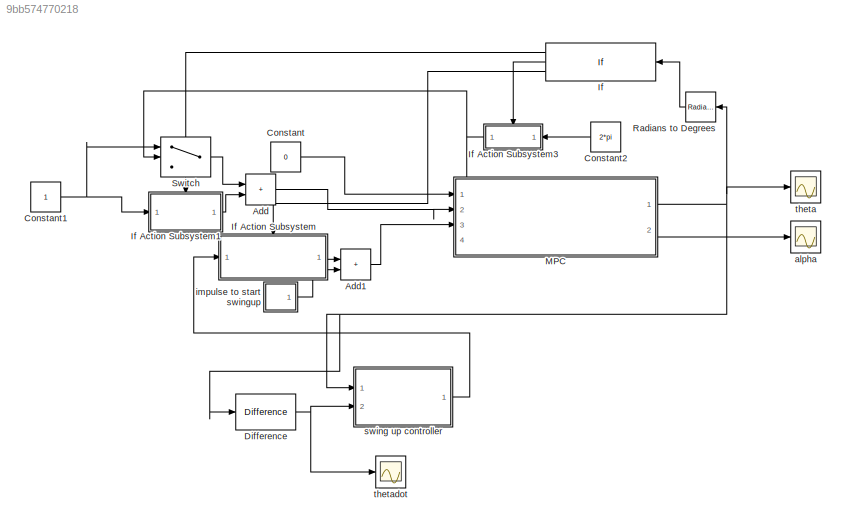
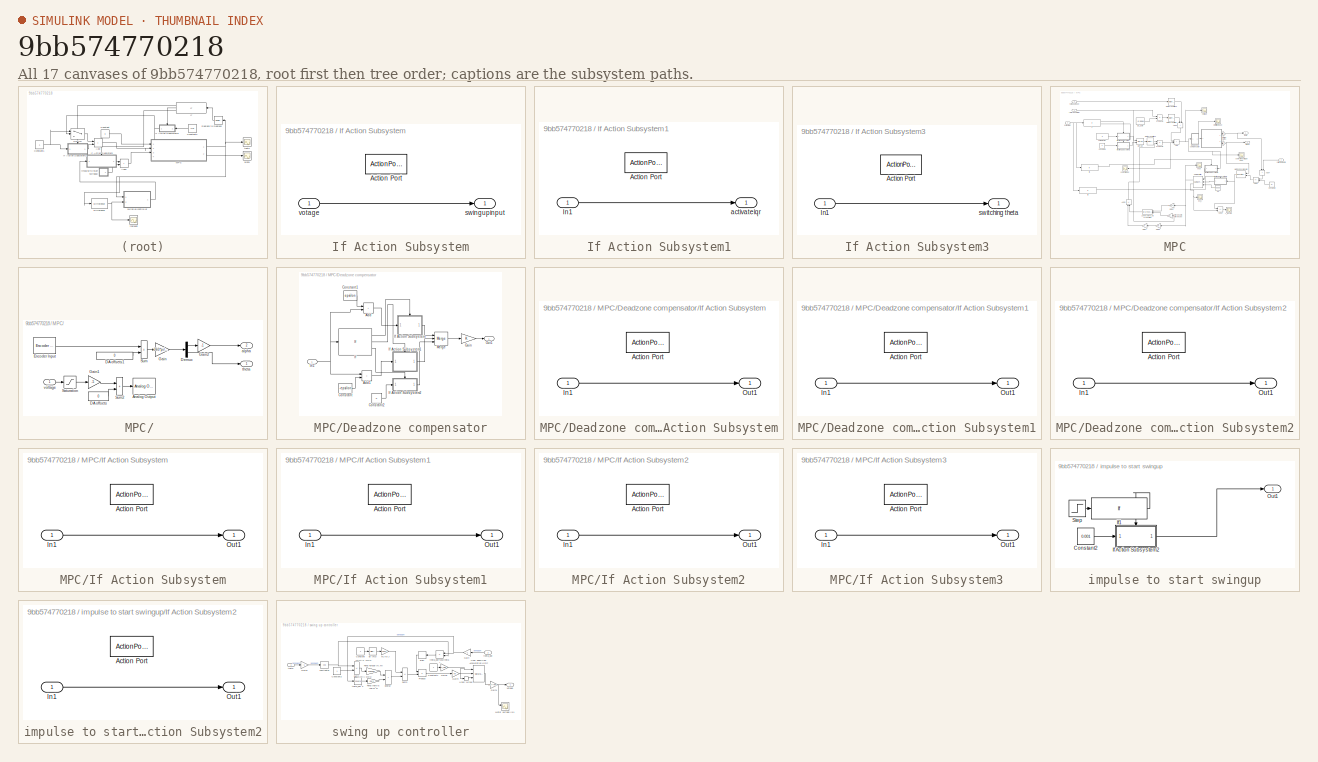
[diagram: thumbnail index - all 17 canvases of the model, root first then tree order]
MODEL slx_9bb574770218
KIND model
CONFIG AbsTol = auto
CONFIG EnableMultiTasking = on
CONFIG FixedStep = auto
CONFIG MaxStep = auto
CONFIG MinStep = auto
CONFIG RelTol = 1e-3
CONFIG SampleTimeConstraint = Unconstrained
CONFIG SolverName = ode1
CONFIG StartTime = 0.0
CONFIG StopTime = 120
BLOCK [Sum] Add
  IconShape = rectangular
  Ports = [2, 1]
BLOCK [Sum] Add1
  IconShape = rectangular
  Ports = [2, 1]
BLOCK [Constant] Constant
  Value = 0
BLOCK [Constant] Constant1
BLOCK [Constant] Constant2
  Value = 2*pi
BLOCK [Reference] Difference  REF=simulink/Discrete/Difference
  Ports = [1, 1]
  SourceBlock = simulink/Discrete/Difference
  SourceProductBaseCode = SL
  SourceType = Difference
BLOCK [If] If
  ElseIfExpressions = u1 <-175 & u1>-185
  IfExpression = u1>175 & u1 < 185
  Ports = [1, 3]
BLOCK [SubSystem] If Action Subsystem
  Ports = [1, 1, 0, 0, 0, 0, 0, 1]
  RequestExecContextInheritance = off
  TreatAsAtomicUnit = on
BLOCK [ActionPort] If Action Subsystem/Action Port
  ActionPortLabel = else
BLOCK [Outport] If Action Subsystem/swingupinput
BLOCK [Inport] If Action Subsystem/votage
BLOCK [SubSystem] If Action Subsystem1
  Ports = [1, 1, 0, 0, 0, 0, 0, 1]
  RequestExecContextInheritance = off
  TreatAsAtomicUnit = on
BLOCK [ActionPort] If Action Subsystem1/Action Port
  ActionPortLabel = if(u1>175 & u1 < 185)
BLOCK [Inport] If Action Subsystem1/In1
BLOCK [Outport] If Action Subsystem1/activatelqr
BLOCK [SubSystem] If Action Subsystem3
  Ports = [1, 1, 0, 0, 0, 0, 0, 1]
  RequestExecContextInheritance = off
  TreatAsAtomicUnit = on
BLOCK [ActionPort] If Action Subsystem3/Action Port
  ActionPortLabel = elseif(u1 <-175 & u1>-185)
BLOCK [Inport] If Action Subsystem3/In1
BLOCK [Outport] If Action Subsystem3/switching theta
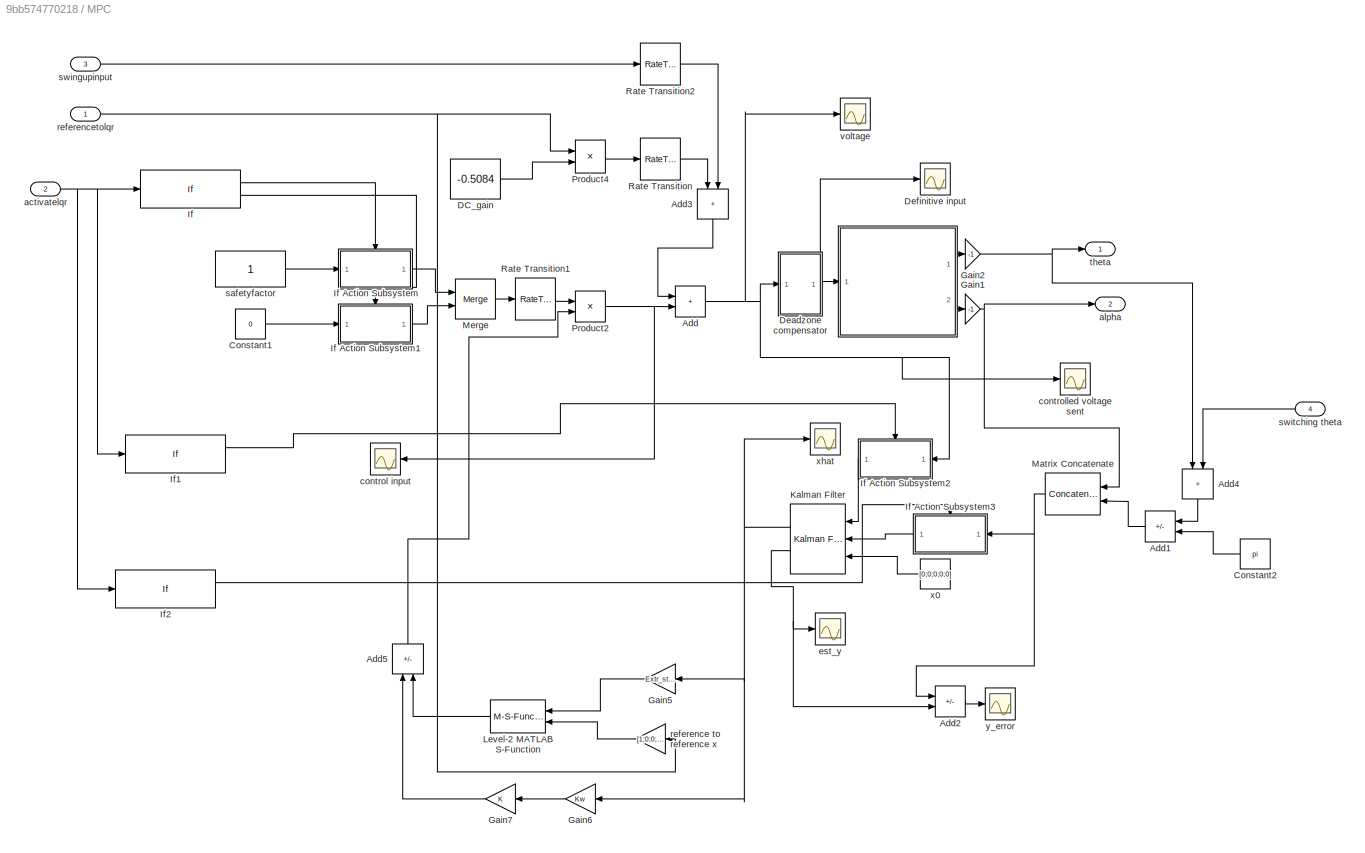
BLOCK [SubSystem] MPC
  PortSchema = {"entries":[{"content":{"sides":[{"content":{"connectorIds":["In1","In2","In3"]},"type":"ConnectorPlacement.EquallySpacedRectSide","uuid":"9db084a4-f3e8-4cdd-afd7-80f171250afb"},{"content":{"connectorIds":["Out1","Out2"],"side":"RIGHT"},"type":"ConnectorPlacement.EquallySpacedRectSide","uuid":"2cad91b5-cf79-4872-a768-f1b673626e3c"},{"content":{"connectorIds":["In4"],"side":"TOP"},"type":"Connector...<+264ch>
  Ports = [4, 2]
  RequestExecContextInheritance = off
BLOCK [SubSystem] MPC/ 
  InitFcn = hwinit
  LoadFcn = hwinit
  NameLocation = top
  Ports = [1, 2]
  RequestExecContextInheritance = off
  ShowPortLabels = none
BLOCK [Reference] MPC/ /Analog Output  REF=sldrtlib/Analog Output
  AttributesFormatString = Humusoft\nMF634 [auto]
  Ports = [1]
  SourceBlock = sldrtlib/Analog Output
  SourceProductBaseCode = WT
  SourceType = Simulink Desktop Real-Time Analog Output
BLOCK [Constant] MPC/ /DA offsets
  Value = 0
BLOCK [Constant] MPC/ /DA offsets1
  SampleTime = h
  Value = 0
BLOCK [Demux] MPC/ /Demux
  Outputs = 2
  Ports = [1, 2]
BLOCK [Reference] MPC/ /Encoder Input  REF=sldrtlib/Encoder Input
  AttributesFormatString = Humusoft\nMF634 [auto]
  Ports = [0, 1]
  SourceBlock = sldrtlib/Encoder Input
  SourceProductBaseCode = WT
  SourceType = Simulink Desktop Real-Time Encoder Input
BLOCK [Gain] MPC/ /Gain
  Gain = 360*pi/(180*512*4)
  OutDataTypeStr = Inherit: Same as input
  ParamDataTypeStr = Inherit: Same as input
  SaturateOnIntegerOverflow = on
BLOCK [Gain] MPC/ /Gain1
  Gain = -5
  OutDataTypeStr = Inherit: Same as input
  ParamDataTypeStr = Inherit: Same as input
  SaturateOnIntegerOverflow = on
BLOCK [Gain] MPC/ /Gain2
  Gain = -1
  OutDataTypeStr = Inherit: Same as input
  ParamDataTypeStr = Inherit: Same as input
  SaturateOnIntegerOverflow = on
BLOCK [Saturate] MPC/ /Saturation
  LowerLimit = -1
  UpperLimit = 1
BLOCK [Sum] MPC/ /Sum
  IconShape = rectangular
  InputSameDT = on
  OutDataTypeStr = Inherit: Same as first input
  Ports = [2, 1]
  SaturateOnIntegerOverflow = on
BLOCK [Sum] MPC/ /Sum2
  IconShape = rectangular
  InputSameDT = on
  OutDataTypeStr = Inherit: Same as first input
  Ports = [2, 1]
  SaturateOnIntegerOverflow = on
BLOCK [Outport] MPC/ /alpha
  Port = 2
  Tag = Cable length
BLOCK [Outport] MPC/ /theta
  Tag = Cable length
BLOCK [Inport] MPC/ /voltage
BLOCK [Sum] MPC/Add
  IconShape = rectangular
  Ports = [2, 1]
  RndMeth = Nearest
BLOCK [Sum] MPC/Add1
  IconShape = rectangular
  Inputs = +-
  Ports = [2, 1]
BLOCK [Sum] MPC/Add2
  IconShape = rectangular
  Inputs = +-
  Ports = [2, 1]
BLOCK [Sum] MPC/Add3
  IconShape = rectangular
  NameLocation = left
  Ports = [2, 1]
BLOCK [Sum] MPC/Add4
  IconShape = rectangular
  NameLocation = left
  Ports = [2, 1]
BLOCK [Sum] MPC/Add5
  IconShape = rectangular
  Inputs = -+
  NameLocation = right
  Ports = [2, 1]
BLOCK [Constant] MPC/Constant1
  Value = 0
BLOCK [Constant] MPC/Constant2
  Value = pi
BLOCK [Constant] MPC/DC_gain
  SampleTime = h
  Value = -0.5084
BLOCK [SubSystem] MPC/Deadzone compensator
  Ports = [1, 1]
  RequestExecContextInheritance = off
BLOCK [Sum] MPC/Deadzone compensator/Add
  IconShape = rectangular
  Ports = [2, 1]
BLOCK [Sum] MPC/Deadzone compensator/Add1
  IconShape = rectangular
  Ports = [2, 1]
BLOCK [Constant] MPC/Deadzone compensator/Constant
  Value = -epsilon
BLOCK [Constant] MPC/Deadzone compensator/Constant1
  Value = epsilon
BLOCK [Constant] MPC/Deadzone compensator/Constant2
  Value = 0
BLOCK [Gain] MPC/Deadzone compensator/Gain
BLOCK [If] MPC/Deadzone compensator/If
  ElseIfExpressions = u1 < 0
  Ports = [1, 3]
BLOCK [SubSystem] MPC/Deadzone compensator/If Action Subsystem
  Ports = [1, 1, 0, 0, 0, 0, 0, 1]
  RequestExecContextInheritance = off
  TreatAsAtomicUnit = on
BLOCK [ActionPort] MPC/Deadzone compensator/If Action Subsystem/Action Port
  ActionPortLabel = if(u1 > 0)
BLOCK [Inport] MPC/Deadzone compensator/If Action Subsystem/In1
BLOCK [Outport] MPC/Deadzone compensator/If Action Subsystem/Out1
BLOCK [SubSystem] MPC/Deadzone compensator/If Action Subsystem1
  Ports = [1, 1, 0, 0, 0, 0, 0, 1]
  RequestExecContextInheritance = off
  TreatAsAtomicUnit = on
BLOCK [ActionPort] MPC/Deadzone compensator/If Action Subsystem1/Action Port
  ActionPortLabel = elseif(u1 < 0)
BLOCK [Inport] MPC/Deadzone compensator/If Action Subsystem1/In1
BLOCK [Outport] MPC/Deadzone compensator/If Action Subsystem1/Out1
BLOCK [SubSystem] MPC/Deadzone compensator/If Action Subsystem2
  Ports = [1, 1, 0, 0, 0, 0, 0, 1]
  RequestExecContextInheritance = off
  TreatAsAtomicUnit = on
BLOCK [ActionPort] MPC/Deadzone compensator/If Action Subsystem2/Action Port
  ActionPortLabel = else
BLOCK [Inport] MPC/Deadzone compensator/If Action Subsystem2/In1
BLOCK [Outport] MPC/Deadzone compensator/If Action Subsystem2/Out1
BLOCK [Inport] MPC/Deadzone compensator/In1
BLOCK [Merge] MPC/Deadzone compensator/Merge
  Inputs = 3
  Ports = [3, 1]
BLOCK [Outport] MPC/Deadzone compensator/Out1
BLOCK [Scope] MPC/Definitive input
  Floating = off
  NumInputPorts = 1
  Ports = [1]
  ScopeSpecificationString = Simulink.scopes.TimeScopeBlockCfg('CurrentConfiguration', extmgr.ConfigurationSet(extmgr.Configuration('Core','General UI',true),extmgr.Configuration('Core','Source UI',true),extmgr.Configuration('Sources','WiredSimulink',true,'DataLoggingVariableName','ScopeData5'),extmgr.Configuration('Visuals','Time Domain',true,'SerializedDisplays',{struct('MinYLimReal','-3.12558','MaxYLimReal','1.33367','YLab...<+1486ch>
BLOCK [Gain] MPC/Gain1
  Gain = -1
BLOCK [Gain] MPC/Gain2
  Gain = -1
BLOCK [Gain] MPC/Gain5
  Gain = Extr_states
  Multiplication = Matrix(K*u)
BLOCK [Gain] MPC/Gain6
  Gain = Kw
  Multiplication = Matrix(K*u)
BLOCK [Gain] MPC/Gain7
BLOCK [If] MPC/If
  Ports = [1, 2]
BLOCK [SubSystem] MPC/If Action Subsystem
  Ports = [1, 1, 0, 0, 0, 0, 0, 1]
  RequestExecContextInheritance = off
  TreatAsAtomicUnit = on
BLOCK [ActionPort] MPC/If Action Subsystem/Action Port
  ActionPortLabel = if(u1 > 0)
BLOCK [Inport] MPC/If Action Subsystem/In1
BLOCK [Outport] MPC/If Action Subsystem/Out1
BLOCK [SubSystem] MPC/If Action Subsystem1
  Ports = [1, 1, 0, 0, 0, 0, 0, 1]
  RequestExecContextInheritance = off
  TreatAsAtomicUnit = on
BLOCK [ActionPort] MPC/If Action Subsystem1/Action Port
  ActionPortLabel = else
BLOCK [Inport] MPC/If Action Subsystem1/In1
BLOCK [Outport] MPC/If Action Subsystem1/Out1
BLOCK [SubSystem] MPC/If Action Subsystem2
  Ports = [1, 1, 0, 0, 0, 0, 0, 1]
  RequestExecContextInheritance = off
  TreatAsAtomicUnit = on
BLOCK [ActionPort] MPC/If Action Subsystem2/Action Port
  ActionPortLabel = if(u1 > 0)
BLOCK [Inport] MPC/If Action Subsystem2/In1
BLOCK [Outport] MPC/If Action Subsystem2/Out1
BLOCK [SubSystem] MPC/If Action Subsystem3
  Ports = [1, 1, 0, 0, 0, 0, 0, 1]
  RequestExecContextInheritance = off
  TreatAsAtomicUnit = on
BLOCK [ActionPort] MPC/If Action Subsystem3/Action Port
  ActionPortLabel = if(u1 > 0)
BLOCK [Inport] MPC/If Action Subsystem3/In1
BLOCK [Outport] MPC/If Action Subsystem3/Out1
BLOCK [If] MPC/If1
  Ports = [1, 2]
BLOCK [If] MPC/If2
  Ports = [1, 2]
BLOCK [Reference] MPC/Kalman Filter  REF=ctrlSharedLib/Kalman Filter
  Ports = [3, 2]
  SourceBlock = ctrlSharedLib/Kalman Filter
  SourceProductBaseCode = CT,ID
  SourceType = ctrlKalmanFilter
BLOCK [M-S-Function] MPC/Level-2 MATLAB S-Function
  FunctionName = S_function_mpc
  Parameters = fast_opt
  Ports = [2, 1]
BLOCK [Concatenate] MPC/Matrix Concatenate
  ConcatenateDimension = 2
  NameLocation = top
  Ports = [2, 1]
BLOCK [Merge] MPC/Merge
  Ports = [2, 1]
BLOCK [Product] MPC/Product2
  Ports = [2, 1]
BLOCK [Product] MPC/Product4
  Inputs = */
  Ports = [2, 1]
BLOCK [RateTransition] MPC/Rate Transition
  OutPortSampleTime = h
BLOCK [RateTransition] MPC/Rate Transition1
  OutPortSampleTime = h
BLOCK [RateTransition] MPC/Rate Transition2
  OutPortSampleTime = h
BLOCK [Inport] MPC/activatelqr
  Port = 2
BLOCK [Outport] MPC/alpha
  Port = 2
BLOCK [Scope] MPC/control input
  Floating = off
  NumInputPorts = 1
  Ports = [1]
  ScopeSpecificationString = Simulink.scopes.TimeScopeBlockCfg('CurrentConfiguration', extmgr.ConfigurationSet(extmgr.Configuration('Core','General UI',true),extmgr.Configuration('Core','Source UI',true),extmgr.Configuration('Sources','WiredSimulink',true,'DataLoggingVariableName','ScopeData2'),extmgr.Configuration('Visuals','Time Domain',true,'SerializedDisplays',{struct('MinYLimReal','-1.15587','MaxYLimReal','0.71963','YLab...<+1465ch>
BLOCK [Scope] MPC/controlled voltage sent
  Floating = off
  NumInputPorts = 1
  Ports = [1]
  ScopeSpecificationString = Simulink.scopes.TimeScopeBlockCfg('CurrentConfiguration', extmgr.ConfigurationSet(extmgr.Configuration('Core','General UI',true),extmgr.Configuration('Core','Source UI',true),extmgr.Configuration('Sources','WiredSimulink',true,'DataLoggingVariableName','ScopeData1'),extmgr.Configuration('Visuals','Time Domain',true,'SerializedDisplays',{struct('MinYLimReal','-0.42993','MaxYLimReal','0.17233','YLab...<+1459ch>
BLOCK [Scope] MPC/est_y
  Floating = off
  NumInputPorts = 1
  Ports = [1]
  ScopeSpecificationString = Simulink.scopes.TimeScopeBlockCfg('CurrentConfiguration', extmgr.ConfigurationSet(extmgr.Configuration('Core','General UI',true),extmgr.Configuration('Core','Source UI',true),extmgr.Configuration('Sources','WiredSimulink',true,'DataLoggingVariableName','ScopeData1'),extmgr.Configuration('Visuals','Time Domain',true,'SerializedDisplays',{struct('MinYLimReal','-2.53759','MaxYLimReal','0.96372','YLab...<+1465ch>
BLOCK [Gain] MPC/reference to reference x
  Gain = [1;0;0;0]
BLOCK [Inport] MPC/referencetolqr
BLOCK [Constant] MPC/safetyfactor
  SampleTime = h
BLOCK [Inport] MPC/swingupinput
  Port = 3
BLOCK [Inport] MPC/switching theta
  Port = 4
BLOCK [Outport] MPC/theta
BLOCK [Scope] MPC/voltage
  Floating = off
  NumInputPorts = 1
  Ports = [1]
  ScopeSpecificationString = Simulink.scopes.TimeScopeBlockCfg('CurrentConfiguration', extmgr.ConfigurationSet(extmgr.Configuration('Core','General UI',true),extmgr.Configuration('Core','Source UI',true),extmgr.Configuration('Sources','WiredSimulink',true,'DataLogging',true,'DataLoggingVariableName','u','SampleTime','h','DataLoggingSaveFormat','Array','DataLoggingDecimation','1','DataLoggingDecimateData',true),extmgr.Configur...<+1700ch>
BLOCK [Constant] MPC/x0
  Value = [0;0;0;0;0]
BLOCK [Scope] MPC/xhat
  Floating = off
  NumInputPorts = 1
  Ports = [1]
  ScopeSpecificationString = Simulink.scopes.TimeScopeBlockCfg('CurrentConfiguration', extmgr.ConfigurationSet(extmgr.Configuration('Core','General UI',true),extmgr.Configuration('Core','Source UI',true),extmgr.Configuration('Sources','WiredSimulink',true,'DataLoggingVariableName','ScopeData1'),extmgr.Configuration('Visuals','Time Domain',true,'SerializedDisplays',{struct('MinYLimReal','-379.91915','MaxYLimReal','87.16712','Y...<+1537ch>
BLOCK [Scope] MPC/y_error
  Floating = off
  NumInputPorts = 1
  Ports = [1]
  ScopeSpecificationString = Simulink.scopes.TimeScopeBlockCfg('CurrentConfiguration', extmgr.ConfigurationSet(extmgr.Configuration('Core','General UI',true),extmgr.Configuration('Core','Source UI',true),extmgr.Configuration('Sources','WiredSimulink',true,'DataLoggingVariableName','ScopeData3'),extmgr.Configuration('Visuals','Time Domain',true,'SerializedDisplays',{struct('MinYLimReal','-0.000053','MaxYLimReal','0.000028','YL...<+1480ch>
BLOCK [Reference] Radians to Degrees  REF=simulink_extras/Transformations/Radians
to Degrees
  Ports = [1, 1]
  SourceBlock = simulink_extras/Transformations/Radians\nto Degrees
  SourceProductBaseCode = SL
  SourceType = RadiansToDegrees
BLOCK [Switch] Switch
  Criteria = u2 > Threshold
  InputSameDT = off
  SaturateOnIntegerOverflow = off
BLOCK [Scope] alpha
  Floating = off
  NumInputPorts = 1
  Ports = [1]
  ScopeSpecificationString = Simulink.scopes.TimeScopeBlockCfg('CurrentConfiguration', extmgr.ConfigurationSet(extmgr.Configuration('Core','General UI',true),extmgr.Configuration('Core','Source UI',true),extmgr.Configuration('Sources','WiredSimulink',true,'DataLogging',true,'DataLoggingVariableName','alpha','SampleTime','h','DataLoggingSaveFormat','Array','DataLoggingDecimation','1','DataLoggingDecimateData',true),extmgr.Conf...<+1806ch>
BLOCK [SubSystem] impulse to start swingup
  Ports = [0, 1]
  RequestExecContextInheritance = off
BLOCK [Constant] impulse to start swingup/Constant2
  Value = 0.001
BLOCK [SubSystem] impulse to start swingup/If Action Subsystem2
  Ports = [1, 1, 0, 0, 0, 0, 0, 1]
  RequestExecContextInheritance = off
  TreatAsAtomicUnit = on
BLOCK [ActionPort] impulse to start swingup/If Action Subsystem2/Action Port
  ActionPortLabel = if(u1 == 0)
BLOCK [Inport] impulse to start swingup/If Action Subsystem2/In1
BLOCK [Outport] impulse to start swingup/If Action Subsystem2/Out1
BLOCK [If] impulse to start swingup/If1
  IfExpression = u1 == 0
  Ports = [1, 1]
  ShowElse = off
BLOCK [Outport] impulse to start swingup/Out1
BLOCK [Step] impulse to start swingup/Step
  SampleTime = h
  Time = h
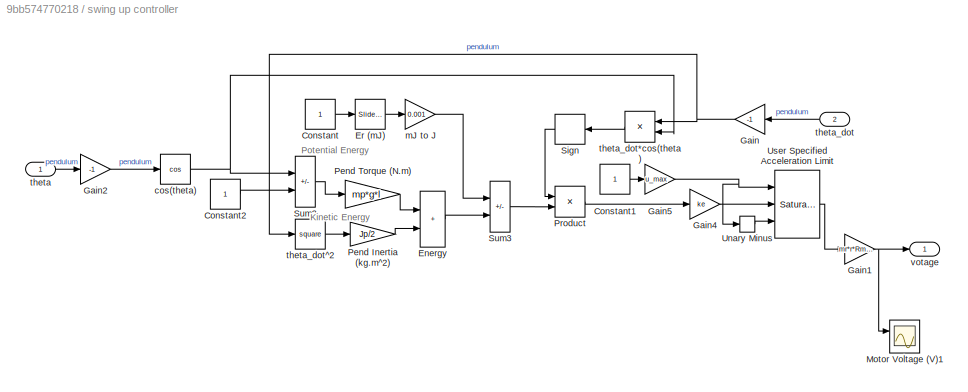
BLOCK [SubSystem] swing up controller
  Ports = [2, 1]
  RequestExecContextInheritance = off
BLOCK [Constant] swing up controller/Constant
BLOCK [Constant] swing up controller/Constant1
BLOCK [Constant] swing up controller/Constant2
BLOCK [Sum] swing up controller/Energy
  IconShape = rectangular
  Ports = [2, 1]
  SaturateOnIntegerOverflow = on
BLOCK [Reference] swing up controller/Er (mJ)  REF=simulink/Math
Operations/Slider
Gain
  Ports = [1, 1]
  SourceBlock = simulink/Math\nOperations/Slider\nGain
  SourceProductBaseCode = SL
  SourceType = Slider Gain
BLOCK [Gain] swing up controller/Gain
  Gain = -1
BLOCK [Gain] swing up controller/Gain1
  Gain = mr*r*Rm/kt
BLOCK [Gain] swing up controller/Gain2
  Gain = -1
BLOCK [Gain] swing up controller/Gain4
  Gain = ke
BLOCK [Gain] swing up controller/Gain5
  Gain = u_max
BLOCK [Scope] swing up controller/Motor Voltage (V)1
  Floating = off
  NumInputPorts = 2
  Ports = [2]
  ScopeSpecificationString = Simulink.scopes.TimeScopeBlockCfg('CurrentConfiguration', extmgr.ConfigurationSet(extmgr.Configuration('Core','General UI',true),extmgr.Configuration('Core','Source UI',true),extmgr.Configuration('Sources','WiredSimulink',true,'DataLoggingSaveFormat','StructureWithTime','DataLoggingLimitDataPoints',true,'DataLoggingDecimation','1','DataLoggingDecimateData',true,'DataLoggingVariableName','ScopeData...<+1823ch>
BLOCK [Gain] swing up controller/Pend Inertia (kg.m^2)
  Gain = Jp/2
BLOCK [Gain] swing up controller/Pend Torque (N.m)
  Gain = mp*g*l
BLOCK [Product] swing up controller/Product
  Ports = [2, 1]
  RndMeth = Zero
BLOCK [Signum] swing up controller/Sign
BLOCK [Sum] swing up controller/Sum2
  IconShape = rectangular
  Inputs = -+
  Ports = [2, 1]
  SaturateOnIntegerOverflow = on
BLOCK [Sum] swing up controller/Sum3
  IconShape = rectangular
  Inputs = +-
  Ports = [2, 1]
  SaturateOnIntegerOverflow = on
BLOCK [UnaryMinus] swing up controller/Unary Minus
BLOCK [Reference] swing up controller/User Specified Acceleration Limit  REF=simulink/Discontinuities/Saturation
Dynamic
  Ports = [3, 1]
  SourceBlock = simulink/Discontinuities/Saturation\nDynamic
  SourceProductBaseCode = SL
  SourceType = Saturation Dynamic
BLOCK [Trigonometry] swing up controller/cos(theta)
  Operator = cos
  Ports = [1, 1]
BLOCK [Gain] swing up controller/mJ to J
  Gain = 0.001
BLOCK [Inport] swing up controller/theta
BLOCK [Inport] swing up controller/theta_dot
  Port = 2
BLOCK [Product] swing up controller/theta_dot*cos(theta)
  Ports = [2, 1]
  RndMeth = Zero
BLOCK [Math] swing up controller/theta_dot^2
  Operator = square
  Ports = [1, 1]
  SignedPower = on
BLOCK [Outport] swing up controller/votage
  VectorParamsAs1DForOutWhenUnconnected = off
BLOCK [Scope] theta
  Floating = off
  NumInputPorts = 1
  Ports = [1]
  ScopeSpecificationString = Simulink.scopes.TimeScopeBlockCfg('CurrentConfiguration', extmgr.ConfigurationSet(extmgr.Configuration('Core','General UI',true),extmgr.Configuration('Core','Source UI',true),extmgr.Configuration('Sources','WiredSimulink',true,'DataLogging',true,'DataLoggingVariableName','theta','SampleTime','h','DataLoggingSaveFormat','Array','DataLoggingDecimation','1','DataLoggingDecimateData',true),extmgr.Conf...<+1753ch>
BLOCK [Scope] thetadot
  Commented = on
  Floating = off
  NumInputPorts = 1
  Ports = [1]
  ScopeSpecificationString = Simulink.scopes.TimeScopeBlockCfg('CurrentConfiguration', extmgr.ConfigurationSet(extmgr.Configuration('Core','General UI',true),extmgr.Configuration('Core','Source UI',true),extmgr.Configuration('Sources','WiredSimulink',true,'DataLoggingVariableName','ScopeData3'),extmgr.Configuration('Visuals','Time Domain',true,'SerializedDisplays',{struct('MinYLimReal','-0.3252','MaxYLimReal','0.34975','YLabe...<+1403ch>
ANNOTATION swing up controller: Kinetic Energy
ANNOTATION swing up controller: Potential Energy
LINE Add1:1 -> MPC:3
LINE Add:1 -> MPC:2
NET Constant1:1 -> If Action Subsystem1:1, Switch:1
LINE Constant2:1 -> If Action Subsystem3:1
LINE Constant:1 -> MPC:1
NET Difference:1 -> swing up controller:2, thetadot:1
LINE If Action Subsystem/votage:1 -> If Action Subsystem/swingupinput:1
LINE If Action Subsystem1/In1:1 -> If Action Subsystem1/activatelqr:1
LINE If Action Subsystem1:1 -> Add:2
LINE If Action Subsystem3/In1:1 -> If Action Subsystem3/switching theta:1
NET If Action Subsystem3:1 -> MPC:4, Switch:2
LINE If Action Subsystem:1 -> Add1:1
LINE If:1 -> If Action Subsystem1:ifaction
LINE If:2 -> If Action Subsystem3:ifaction
LINE If:3 -> If Action Subsystem:ifaction
LINE MPC/ /DA offsets1:1 -> MPC/ /Sum:2
LINE MPC/ /DA offsets:1 -> MPC/ /Sum2:2
LINE MPC/ /Demux:1 -> MPC/ /Gain2:1
LINE MPC/ /Demux:2 -> MPC/ /theta:1
LINE MPC/ /Encoder Input:1 -> MPC/ /Sum:1
LINE MPC/ /Gain1:1 -> MPC/ /Sum2:1
LINE MPC/ /Gain2:1 -> MPC/ /alpha:1
LINE MPC/ /Gain:1 -> MPC/ /Demux:1
LINE MPC/ /Saturation:1 -> MPC/ /Gain1:1
LINE MPC/ /Sum2:1 -> MPC/ /Analog Output:1
LINE MPC/ /Sum:1 -> MPC/ /Gain:1
LINE MPC/ /voltage:1 -> MPC/ /Saturation:1
LINE MPC/ :1 -> MPC/Gain2:1
LINE MPC/ :2 -> MPC/Gain1:1
LINE MPC/Add1:1 -> MPC/Matrix Concatenate:2
LINE MPC/Add2:1 -> MPC/y_error:1
LINE MPC/Add3:1 -> MPC/Add:1
LINE MPC/Add4:1 -> MPC/Add1:1
LINE MPC/Add5:1 -> MPC/Product2:2
NET MPC/Add:1 -> MPC/Deadzone compensator:1, MPC/If Action Subsystem2:1, MPC/controlled voltage sent:1, MPC/voltage:1
LINE MPC/Constant1:1 -> MPC/If Action Subsystem1:1
LINE MPC/Constant2:1 -> MPC/Add1:2
LINE MPC/DC_gain:1 -> MPC/Product4:2
LINE MPC/Deadzone compensator/Add1:1 -> MPC/Deadzone compensator/If Action Subsystem1:1
LINE MPC/Deadzone compensator/Add:1 -> MPC/Deadzone compensator/If Action Subsystem:1
LINE MPC/Deadzone compensator/Constant1:1 -> MPC/Deadzone compensator/Add:1
LINE MPC/Deadzone compensator/Constant2:1 -> MPC/Deadzone compensator/If Action Subsystem2:1
LINE MPC/Deadzone compensator/Constant:1 -> MPC/Deadzone compensator/Add1:2
LINE MPC/Deadzone compensator/Gain:1 -> MPC/Deadzone compensator/Out1:1
LINE MPC/Deadzone compensator/If Action Subsystem/In1:1 -> MPC/Deadzone compensator/If Action Subsystem/Out1:1
LINE MPC/Deadzone compensator/If Action Subsystem1/In1:1 -> MPC/Deadzone compensator/If Action Subsystem1/Out1:1
LINE MPC/Deadzone compensator/If Action Subsystem1:1 -> MPC/Deadzone compensator/Merge:2
LINE MPC/Deadzone compensator/If Action Subsystem2/In1:1 -> MPC/Deadzone compensator/If Action Subsystem2/Out1:1
LINE MPC/Deadzone compensator/If Action Subsystem2:1 -> MPC/Deadzone compensator/Merge:3
LINE MPC/Deadzone compensator/If Action Subsystem:1 -> MPC/Deadzone compensator/Merge:1
LINE MPC/Deadzone compensator/If:1 -> MPC/Deadzone compensator/If Action Subsystem:ifaction
LINE MPC/Deadzone compensator/If:2 -> MPC/Deadzone compensator/If Action Subsystem1:ifaction
LINE MPC/Deadzone compensator/If:3 -> MPC/Deadzone compensator/If Action Subsystem2:ifaction
NET MPC/Deadzone compensator/In1:1 -> MPC/Deadzone compensator/Add1:1, MPC/Deadzone compensator/Add:2, MPC/Deadzone compensator/If:1
LINE MPC/Deadzone compensator/Merge:1 -> MPC/Deadzone compensator/Gain:1
NET MPC/Deadzone compensator:1 -> MPC/ :1, MPC/Definitive input:1
NET MPC/Gain1:1 -> MPC/Matrix Concatenate:1, MPC/alpha:1
NET MPC/Gain2:1 -> MPC/Add4:1, MPC/theta:1
LINE MPC/Gain5:1 -> MPC/Level-2 MATLAB S-Function:1
LINE MPC/Gain6:1 -> MPC/Gain7:1
LINE MPC/Gain7:1 -> MPC/Add5:1
LINE MPC/If Action Subsystem/In1:1 -> MPC/If Action Subsystem/Out1:1
LINE MPC/If Action Subsystem1/In1:1 -> MPC/If Action Subsystem1/Out1:1
LINE MPC/If Action Subsystem1:1 -> MPC/Merge:2
LINE MPC/If Action Subsystem2/In1:1 -> MPC/If Action Subsystem2/Out1:1
LINE MPC/If Action Subsystem2:1 -> MPC/Kalman Filter:1
LINE MPC/If Action Subsystem3/In1:1 -> MPC/If Action Subsystem3/Out1:1
LINE MPC/If Action Subsystem3:1 -> MPC/Kalman Filter:2
LINE MPC/If Action Subsystem:1 -> MPC/Merge:1
LINE MPC/If1:1 -> MPC/If Action Subsystem2:ifaction
LINE MPC/If2:1 -> MPC/If Action Subsystem3:ifaction
LINE MPC/If:1 -> MPC/If Action Subsystem:ifaction
LINE MPC/If:2 -> MPC/If Action Subsystem1:ifaction
NET MPC/Kalman Filter:1 -> MPC/Gain5:1, MPC/Gain6:1, MPC/xhat:1
NET MPC/Kalman Filter:2 -> MPC/Add2:2, MPC/est_y:1
LINE MPC/Level-2 MATLAB S-Function:1 -> MPC/Add5:2
NET MPC/Matrix Concatenate:1 -> MPC/Add2:1, MPC/If Action Subsystem3:1
LINE MPC/Merge:1 -> MPC/Rate Transition1:1
NET MPC/Product2:1 -> MPC/Add:2, MPC/control input:1
LINE MPC/Product4:1 -> MPC/Rate Transition:1
LINE MPC/Rate Transition1:1 -> MPC/Product2:1
LINE MPC/Rate Transition2:1 -> MPC/Add3:2
LINE MPC/Rate Transition:1 -> MPC/Add3:1
NET MPC/activatelqr:1 -> MPC/If1:1, MPC/If2:1, MPC/If:1
LINE MPC/reference to reference x:1 -> MPC/Level-2 MATLAB S-Function:2
NET MPC/referencetolqr:1 -> MPC/Product4:1, MPC/reference to reference x:1
LINE MPC/safetyfactor:1 -> MPC/If Action Subsystem:1
LINE MPC/swingupinput:1 -> MPC/Rate Transition2:1
LINE MPC/switching theta:1 -> MPC/Add4:2
LINE MPC/x0:1 -> MPC/Kalman Filter:3
NET MPC:1 -> Difference:1, Radians to Degrees:1, swing up controller:1, theta:1
LINE MPC:2 -> alpha:1
LINE Radians to Degrees:1 -> If:1
LINE Switch:1 -> Add:1
LINE impulse to start swingup/Constant2:1 -> impulse to start swingup/If Action Subsystem2:1
LINE impulse to start swingup/If Action Subsystem2/In1:1 -> impulse to start swingup/If Action Subsystem2/Out1:1
LINE impulse to start swingup/If Action Subsystem2:1 -> impulse to start swingup/Out1:1
LINE impulse to start swingup/If1:1 -> impulse to start swingup/If Action Subsystem2:ifaction
LINE impulse to start swingup/Step:1 -> impulse to start swingup/If1:1
LINE impulse to start swingup:1 -> Add1:2
LINE swing up controller/Constant1:1 -> swing up controller/Gain5:1
LINE swing up controller/Constant2:1 -> swing up controller/Sum2:2
LINE swing up controller/Constant:1 -> swing up controller/Er (mJ):1
LINE swing up controller/Energy:1 -> swing up controller/Sum3:2
LINE swing up controller/Er (mJ):1 -> swing up controller/mJ to J:1
NET swing up controller/Gain1:1 -> swing up controller/Motor Voltage (V)1:1, swing up controller/votage:1
LINE swing up controller/Gain2:1 -> swing up controller/cos(theta):1
LINE swing up controller/Gain4:1 -> swing up controller/User Specified Acceleration Limit:2
NET swing up controller/Gain5:1 -> swing up controller/Unary Minus:1, swing up controller/User Specified Acceleration Limit:1
NET swing up controller/Gain:1 -> swing up controller/theta_dot*cos(theta):1, swing up controller/theta_dot^2:1
LINE swing up controller/Pend Inertia (kg.m^2):1 -> swing up controller/Energy:2
LINE swing up controller/Pend Torque (N.m):1 -> swing up controller/Energy:1
LINE swing up controller/Product:1 -> swing up controller/Gain4:1
LINE swing up controller/Sign:1 -> swing up controller/Product:1
LINE swing up controller/Sum2:1 -> swing up controller/Pend Torque (N.m):1
LINE swing up controller/Sum3:1 -> swing up controller/Product:2
LINE swing up controller/Unary Minus:1 -> swing up controller/User Specified Acceleration Limit:3
LINE swing up controller/User Specified Acceleration Limit:1 -> swing up controller/Gain1:1
NET swing up controller/cos(theta):1 -> swing up controller/Sum2:1, swing up controller/theta_dot*cos(theta):2
LINE swing up controller/mJ to J:1 -> swing up controller/Sum3:1
LINE swing up controller/theta:1 -> swing up controller/Gain2:1
LINE swing up controller/theta_dot*cos(theta):1 -> swing up controller/Sign:1
LINE swing up controller/theta_dot:1 -> swing up controller/Gain:1
LINE swing up controller/theta_dot^2:1 -> swing up controller/Pend Inertia (kg.m^2):1
LINE swing up controller:1 -> If Action Subsystem:1
note: NET lines group one-source signal fan-out (src -> all destinations, sorted); 1:1 wires keep LINE
